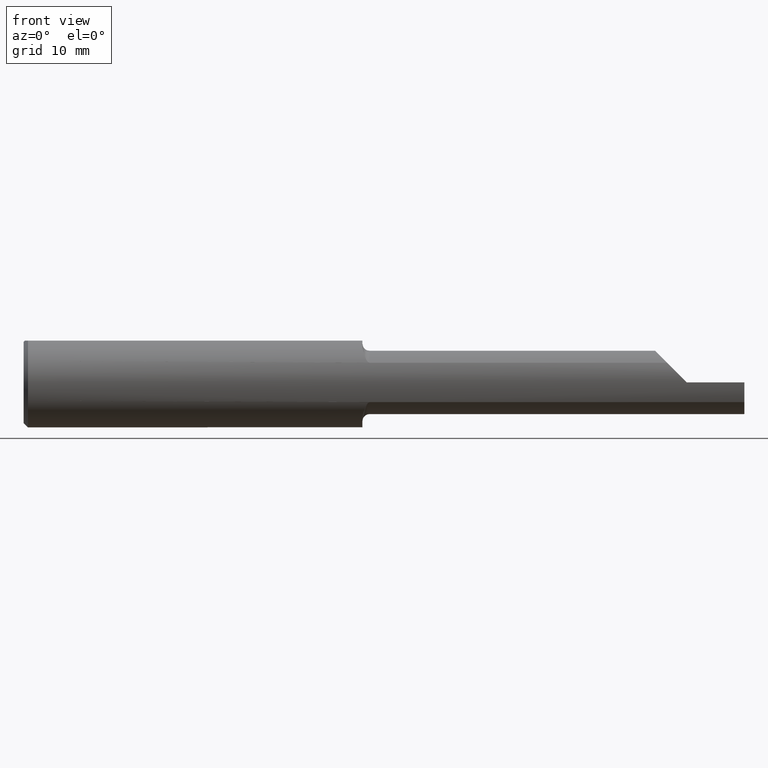
[diagram: clean part render]
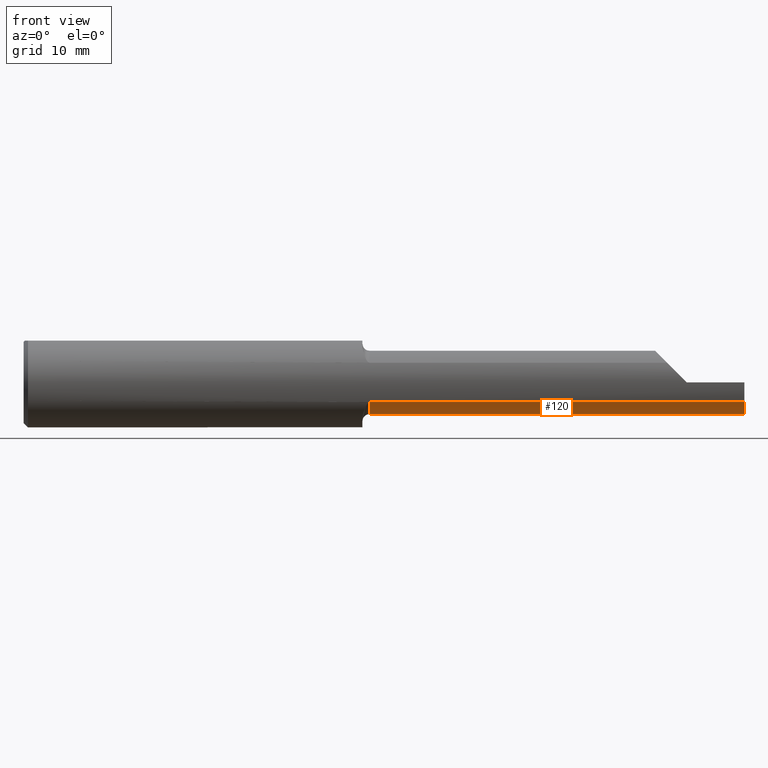
[diagram: same view with one face highlighted and labeled with its STEP entity id]
A machine part, front view. The second image highlights one B-rep face of the part: STEP entity #120.
In plain terms, the highlighted cylindrical surface (edge-blend (fillet) strip) has radius 2.794 mm, axis along (-1, -0, -0).
Its self-contained STEP definition (entity closure, byte-faithful):
#12 = CARTESIAN_POINT ( 'NONE',  ( 2.500000000000000000, -0.1404253234750461043, -0.06817579135535321855 ) ) ;
#20 = CIRCLE ( 'NONE', #189, 0.1100000000000000006 ) ;
#34 = DIRECTION ( 'NONE',  ( -1.000000000000000000, -0.000000000000000000, -0.000000000000000000 ) ) ;
#41 = AXIS2_PLACEMENT_3D ( 'NONE', #462, #465, #518 ) ;
#64 = DIRECTION ( 'NONE',  ( -1.000000000000000000, -0.000000000000000000, -0.000000000000000000 ) ) ;
#120 = ADVANCED_FACE ( 'NONE', ( #445 ), #453, .T. ) ;
#128 = CARTESIAN_POINT ( 'NONE',  ( 2.500000000000000000, -0.05410000000000000919, -0.1100000000000000006 ) ) ;
#156 = DIRECTION ( 'NONE',  ( 0.000000000000000000, 0.000000000000000000, -1.000000000000000000 ) ) ;
#189 = AXIS2_PLACEMENT_3D ( 'NONE', #536, #522, #156 ) ;
#195 = DIRECTION ( 'NONE',  ( -1.000000000000000000, -0.000000000000000000, -0.000000000000000000 ) ) ;
#213 = EDGE_CURVE ( 'NONE', #271, #592, #835, .T. ) ;
#217 = CARTESIAN_POINT ( 'NONE',  ( 2.500000000000000000, -0.06412741814737710211, -0.1095420051181173471 ) ) ;
#234 = VERTEX_POINT ( 'NONE', #323 ) ;
#250 = EDGE_CURVE ( 'NONE', #271, #516, #882, .T. ) ;
#251 = VERTEX_POINT ( 'NONE', #604 ) ;
#271 = VERTEX_POINT ( 'NONE', #12 ) ;
#275 = CARTESIAN_POINT ( 'NONE',  ( 2.500000000000000000, -0.06412741814737710211, -0.1095420051181173471 ) ) ;
#276 = LINE ( 'NONE', #128, #320 ) ;
#306 = CARTESIAN_POINT ( 'NONE',  ( 1.804999999999999938, -0.1404253234750461321, -0.06817579135535316304 ) ) ;
#318 = VECTOR ( 'NONE', #34, 39.37007874015748143 ) ;
#320 = VECTOR ( 'NONE', #827, 39.37007874015748143 ) ;
#323 = CARTESIAN_POINT ( 'NONE',  ( 2.497265575455495323, -0.05410000000000000919, -0.1100000000000000006 ) ) ;
#334 = AXIS2_PLACEMENT_3D ( 'NONE', #439, #64, #719 ) ;
#336 = LINE ( 'NONE', #614, #548 ) ;
#357 = CARTESIAN_POINT ( 'NONE',  ( 1.200000000000000178, -0.1404253234750461321, -0.06817579135535316304 ) ) ;
#402 = CARTESIAN_POINT ( 'NONE',  ( 2.499043608181370502, -0.06079307700223159777, -0.1098472289714905736 ) ) ;
#415 = EDGE_CURVE ( 'NONE', #234, #251, #276, .T. ) ;
#430 = VERTEX_POINT ( 'NONE', #813 ) ;
#439 = CARTESIAN_POINT ( 'NONE',  ( 1.175000000000000266, -0.05409999999999999531, 0.000000000000000000 ) ) ;
#445 = FACE_OUTER_BOUND ( 'NONE', #474, .T. ) ;
#453 = CYLINDRICAL_SURFACE ( 'NONE', #334, 0.1100000000000000006 ) ;
#462 = CARTESIAN_POINT ( 'NONE',  ( 2.500000000000000000, -0.05409999999999999531, 0.000000000000000000 ) ) ;
#465 = DIRECTION ( 'NONE',  ( 1.000000000000000000, -0.000000000000000000, -0.000000000000000000 ) ) ;
#474 = EDGE_LOOP ( 'NONE', ( #652, #753, #857, #744, #837, #479 ) ) ;
#479 = ORIENTED_EDGE ( 'NONE', *, *, #729, .T. ) ;
#516 = VERTEX_POINT ( 'NONE', #217 ) ;
#518 = DIRECTION ( 'NONE',  ( 0.000000000000000000, 0.000000000000000000, 1.000000000000000000 ) ) ;
#522 = DIRECTION ( 'NONE',  ( 1.000000000000000000, 0.000000000000000000, 0.000000000000000000 ) ) ;
#536 = CARTESIAN_POINT ( 'NONE',  ( 1.200000000000000178, -0.05409999999999999531, 0.000000000000000000 ) ) ;
#548 = VECTOR ( 'NONE', #195, 39.37007874015748143 ) ;
#592 = VERTEX_POINT ( 'NONE', #357 ) ;
#604 = CARTESIAN_POINT ( 'NONE',  ( 2.435000000000000053, -0.05410000000000000919, -0.1100000000000000006 ) ) ;
#614 = CARTESIAN_POINT ( 'NONE',  ( 1.175000000000000266, -0.05409999999999997450, -0.1100000000000000006 ) ) ;
#652 = ORIENTED_EDGE ( 'NONE', *, *, #793, .F. ) ;
#719 = DIRECTION ( 'NONE',  ( 0.000000000000000000, 0.000000000000000000, 1.000000000000000000 ) ) ;
#729 = EDGE_CURVE ( 'NONE', #592, #430, #20, .T. ) ;
#744 = ORIENTED_EDGE ( 'NONE', *, *, #250, .F. ) ;
#746 = CARTESIAN_POINT ( 'NONE',  ( 2.498131500062764854, -0.05744828201812183371, -0.1099999999999999867 ) ) ;
#753 = ORIENTED_EDGE ( 'NONE', *, *, #415, .F. ) ;
#792 = EDGE_CURVE ( 'NONE', #234, #516, #850, .T. ) ;
#793 = EDGE_CURVE ( 'NONE', #251, #430, #336, .T. ) ;
#813 = CARTESIAN_POINT ( 'NONE',  ( 1.200000000000000178, -0.05409999999999997450, -0.1100000000000000006 ) ) ;
#827 = DIRECTION ( 'NONE',  ( -1.000000000000000000, -0.000000000000000000, -0.000000000000000000 ) ) ;
#835 = LINE ( 'NONE', #306, #318 ) ;
#837 = ORIENTED_EDGE ( 'NONE', *, *, #213, .T. ) ;
#850 =( BOUNDED_CURVE ( )  B_SPLINE_CURVE ( 3, ( #896, #746, #402, #275 ),
 .UNSPECIFIED., .F., .F. ) 
 B_SPLINE_CURVE_WITH_KNOTS ( ( 4, 4 ),
 ( 0.6981317007977304590, 0.7894167739939434991 ),
 .UNSPECIFIED. ) 
 CURVE ( )  GEOMETRIC_REPRESENTATION_ITEM ( )  RATIONAL_B_SPLINE_CURVE ( ( 1.000000000000000000, 0.9993057068285279287, 0.9993057068285279287, 1.000000000000000000 ) ) 
 REPRESENTATION_ITEM ( '' )  );
#857 = ORIENTED_EDGE ( 'NONE', *, *, #792, .T. ) ;
#882 = CIRCLE ( 'NONE', #41, 0.1100000000000000006 ) ;
#896 = CARTESIAN_POINT ( 'NONE',  ( 2.497265575455495323, -0.05410000000000000919, -0.1100000000000000006 ) ) ;